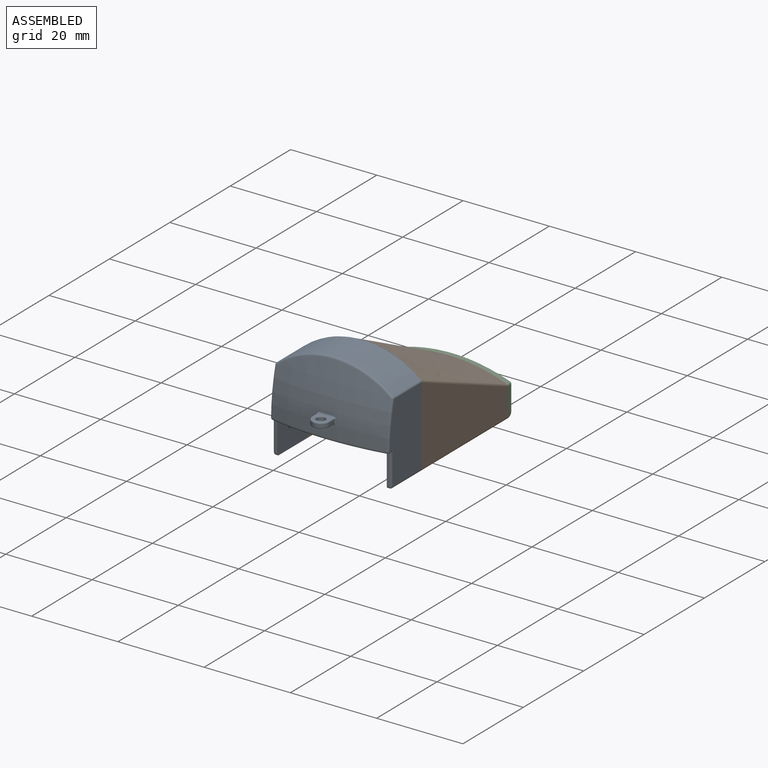
[diagram: assembled view]
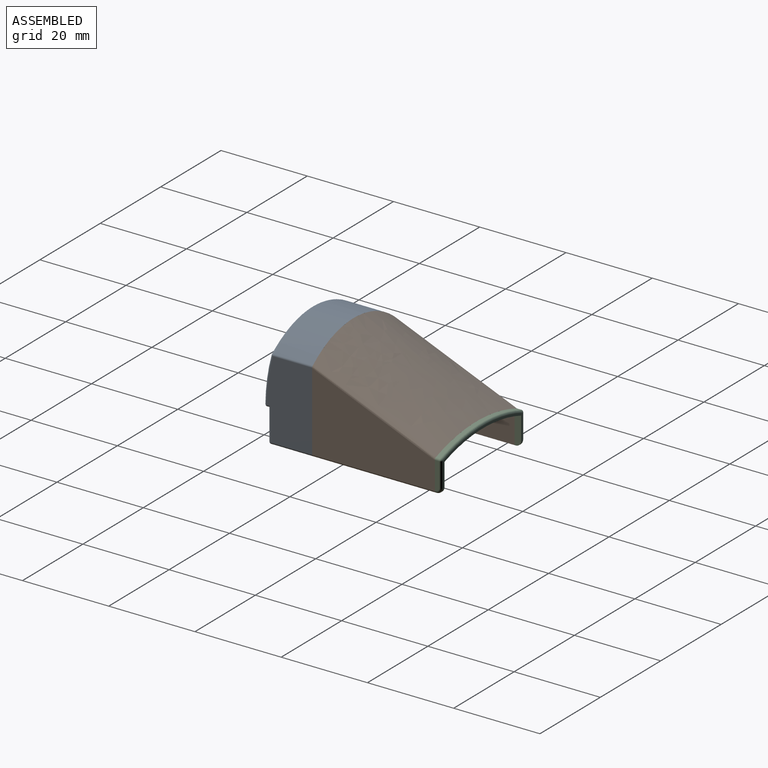
[diagram: assembled view, second angle]
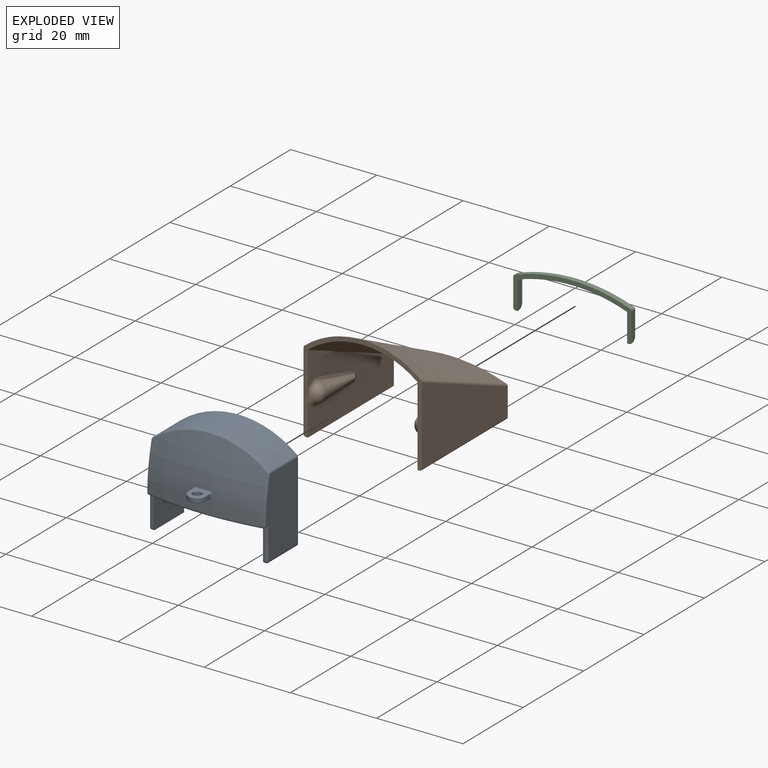
[diagram: exploded view]
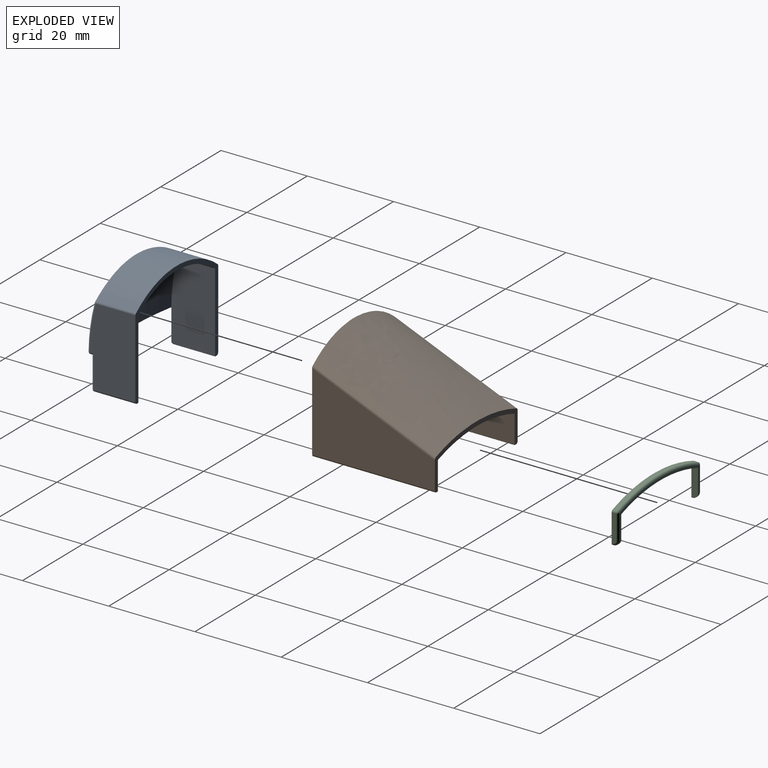
[diagram: exploded view, second angle]
ASSEMBLY  parts=3 mates=2
PART A: 60 faces, bbox 42.4x16x23.9 mm
  f0: revolved ~26.6x11.34mm, area 295.9mm2, adj f16,f17,f19,f22,f24,f29,f45,f48
  f1: plane 18.42x10.16mm, normal (-1,0,0), area 182.1mm2, adj f3,f8,f9,f13,f15,f32
  f2: plane 18.42x10.16mm, normal (1,0,0), area 182.1mm2, adj f7,f8,f9,f12,f15,f36
  f3: plane 9.65x0.51mm, normal (0,0,-1), area 4.9mm2, adj f1,f9,f10,f32
  f4: plane 18.15x10.58mm, normal (1,0,0), area 179.7mm2, adj f9,f10,f17,f20,f27,f33
  f5: cylinder r=21.38mm len=27.06mm, axis (0,1,0), area 267.4mm2, adj f9,f20,f22,f23,f24,f26
  f6: plane 18.15x10.58mm, normal (-1,0,0), area 179.7mm2, adj f9,f11,f16,f26,f31,f35
  f7: plane 9.65x0.51mm, normal (0,0,-1), area 4.9mm2, adj f2,f9,f11,f36
  f8: cylinder r=20.37mm len=25.4mm, axis (0,1,0), area 240mm2, adj f1,f2,f9,f15,f18
  f9: plane 27.43x23.88mm, normal (0,1,0), area 66.8mm2, adj f1,f2,f3,f4,f5,f6,f7,f8
  f10: cylinder r=0.51mm len=9.65mm, axis (0,1,0), area 7.7mm2, adj f3,f4,f9,f34
  f11: cylinder r=0.51mm len=9.65mm, axis (0,1,0), area 7.7mm2, adj f6,f7,f9,f37
  f12: plane 7.11x0.51mm, normal (0,-1,0), area 3.6mm2, adj f2,f14,f35,f36
  f13: plane 7.11x0.51mm, normal (0,-1,0), area 3.6mm2, adj f1,f14,f32,f33
  f14: plane 26.44x1.65mm, normal (0,0,-1), area 13.4mm2, adj f12,f13,f15,f27,f29,f31
  f15: revolved ~25.4x11.58mm, area 296.4mm2, adj f1,f2,f8,f14,f18
  f16: torus R=42.91mm, axis (-1,0,0), area 7.6mm2, adj f0,f6,f25,f30
  f17: torus R=42.91mm, axis (-1,0,0), area 7.6mm2, adj f0,f4,f21,f28
  f18: cylinder r=71.13mm len=24.05mm, axis (0,0.27,0.96), area 62.4mm2, adj f8,f15
  f19: cylinder r=72.14mm len=25.65mm, axis (0,0.27,0.96), area 73.5mm2, adj f0,f23
  f20: cylinder r=0.51mm len=9.14mm, axis (0,1,0), area 4.1mm2, adj f4,f5,f9,f21
  f21: sphere r=0.51mm, area 0.2mm2, adj f17,f20,f22
  f22: bspline ~2.63x2.18mm, area 0.4mm2, adj f0,f5,f21,f23
  f23: bspline ~29.67x6.22mm, area 18.2mm2, adj f5,f19,f22,f24
  f24: bspline ~2.63x2.18mm, area 0.4mm2, adj f0,f5,f23,f25
  f25: sphere r=0.51mm, area 0.2mm2, adj f16,f24,f26
  f26: cylinder r=0.51mm len=9.14mm, axis (0,1,0), area 4.1mm2, adj f5,f6,f9,f25
  f27: cylinder r=0.51mm len=0.93mm, axis (0,1,0), area 0.5mm2, adj f4,f14,f28,f33
  f28: sphere r=0.51mm, area 0.4mm2, adj f17,f27,f29
  f29: bspline ~42.4x3.65mm, area 21.5mm2, adj f0,f14,f28,f30
  f30: sphere r=0.51mm, area 0.4mm2, adj f16,f29,f31
  f31: cylinder r=0.51mm len=0.93mm, axis (0,1,0), area 0.5mm2, adj f6,f14,f30,f35
  f32: cylinder r=0.51mm len=0.51mm, axis (1,0,0), area 0.4mm2, adj f1,f3,f13,f34
  f33: cylinder r=0.51mm len=7.62mm, axis (0,0,-1), area 5.8mm2, adj f4,f13,f27,f34
  f34: sphere r=0.51mm, area 0.4mm2, adj f10,f32,f33
  f35: cylinder r=0.51mm len=7.62mm, axis (0,0,-1), area 5.8mm2, adj f6,f12,f31,f37
  f36: cylinder r=0.51mm len=0.51mm, axis (-1,0,0), area 0.4mm2, adj f2,f7,f12,f37
  f37: sphere r=0.51mm, area 0.4mm2, adj f11,f35,f36
  f38: plane 1.56x0.76mm, normal (1,0,0), area 1.2mm2, adj f40,f44,f45,f46
  f39: plane 1.56x0.76mm, normal (-1,0,0), area 1.2mm2, adj f40,f51,f54,f57
  f40: cylinder r=2.03mm len=4.06mm, axis (0,0,-1), area 4.9mm2, adj f38,f39,f47,f50
  f41: cylinder r=1.02mm len=2.03mm, axis (0,0,-1), area 4.9mm2, adj f58,f59
  f42: plane 3.56x3.39mm, normal (0,0,1), area 5.6mm2, adj f46,f50,f53,f54,f59
  f43: plane 3.56x3.21mm, normal (0,0,-1), area 4.9mm2, adj f44,f47,f51,f52,f58
  f44: cylinder r=0.25mm len=1.49mm, axis (0,1,0), area 0.6mm2, adj f38,f43,f47,f48
  f45: torus R=44.87mm, axis (1,0,0), area 0.3mm2, adj f0,f38,f48,f49
  f46: cylinder r=0.25mm len=1.61mm, axis (0,-1,0), area 0.6mm2, adj f38,f42,f49,f50
  f47: torus R=1.78mm, axis (0,0,1), area 2.4mm2, adj f40,f43,f44,f51
  f48: bspline ~0.62x0.6mm, area 0.2mm2, adj f0,f44,f45,f52
  f49: bspline ~0.62x0.59mm, area 0.2mm2, adj f0,f45,f46,f53
  f50: torus R=1.78mm, axis (0,0,1), area 2.4mm2, adj f40,f42,f46,f54
  f51: cylinder r=0.25mm len=1.49mm, axis (0,-1,0), area 0.6mm2, adj f39,f43,f47,f55
  f52: bspline ~15.23x0.65mm, area 1.5mm2, adj f0,f43,f48,f55
  f53: bspline ~15.23x0.63mm, area 1.3mm2, adj f0,f42,f49,f56
  f54: cylinder r=0.25mm len=1.61mm, axis (0,1,0), area 0.6mm2, adj f39,f42,f50,f56
  f55: bspline ~0.62x0.59mm, area 0.2mm2, adj f0,f51,f52,f57
  f56: bspline ~0.62x0.59mm, area 0.2mm2, adj f0,f53,f54,f57
  f57: torus R=44.87mm, axis (1,0,0), area 0.3mm2, adj f0,f39,f55,f56
  f58: torus R=1.27mm, axis (0,0,1), area 2.8mm2, adj f41,f43
  f59: torus R=1.27mm, axis (0,0,1), area 2.8mm2, adj f41,f42
PART B: 32 faces, bbox 27.5x33.2x24 mm
  f0: plane 28.45x18.42mm, normal (-1,0,0), area 283mm2, adj f1,f2,f7,f8,f25,f26,f27,f28
  f1: plane 27.52x23.96mm, normal (0,-1,0), area 66.8mm2, adj f0,f3,f4,f5,f6,f7,f8,f9
  f2: plane 27.47x9.84mm, normal (0,1,0), area 41.4mm2, adj f0,f3,f4,f5,f6,f7,f8,f9
  f3: plane 28.45x0.51mm, normal (0,0,-1), area 14.5mm2, adj f1,f2,f9,f11
  f4: plane 28.45x18.12mm, normal (-1,0,0), area 349mm2, adj f1,f2,f11,f31
  f5: bspline ~28.45x27.03mm, area 879.1mm2, adj f1,f2,f30,f31
  f6: plane 28.45x18.12mm, normal (1,0,0), area 349mm2, adj f1,f2,f10,f30
  f7: plane 28.45x0.51mm, normal (0,0,-1), area 14.5mm2, adj f0,f1,f2,f10
  f8: bspline ~28.45x25.4mm, area 829.5mm2, adj f0,f1,f2,f9
  f9: plane 28.45x18.42mm, normal (1,0,0), area 283mm2, adj f1,f2,f3,f8,f16,f17,f18,f19
  f10: cylinder r=0.51mm len=28.45mm, axis (0,1,0), area 22.7mm2, adj f1,f2,f6,f7
  f11: cylinder r=0.51mm len=28.45mm, axis (0,1,0), area 22.7mm2, adj f1,f2,f3,f4
  f12: sphere r=0.56mm, area 4mm2, adj f13,f20
  f13: cone r=0.56mm half-angle=7.2deg, axis (0,-0.99,0.12), area 33.1mm2, adj f12,f14,f18,f19
  f14: sphere r=2.1mm, area 9mm2, adj f13,f15,f16,f17
  f15: bspline ~3.86x1.09mm, area 3.1mm2, adj f1,f14,f16,f17
  f16: torus R=3.12mm, axis (-1,0,0), area 4.6mm2, adj f9,f14,f15,f18
  f17: torus R=3.12mm, axis (-1,0,0), area 3.7mm2, adj f9,f14,f15,f19
  f18: bspline ~16.37x5.29mm, area 16.1mm2, adj f9,f13,f16,f20
  f19: bspline ~16.67x1.23mm, area 16.1mm2, adj f9,f13,f17,f20
  f20: torus R=1.32mm, axis (-1,0,0), area 2.4mm2, adj f9,f12,f18,f19
  f21: sphere r=0.56mm, area 4mm2, adj f22,f29
  f22: cone r=0.56mm half-angle=7.2deg, axis (0,-0.99,0.12), area 33.1mm2, adj f21,f23,f27,f28
  f23: sphere r=2.1mm, area 9mm2, adj f22,f24,f25,f26
  f24: bspline ~3.86x1.09mm, area 3.1mm2, adj f1,f23,f25,f26
  f25: torus R=3.12mm, axis (1,0,0), area 4.6mm2, adj f0,f23,f24,f27
  f26: torus R=3.12mm, axis (1,0,0), area 3.7mm2, adj f0,f23,f24,f28
  f27: bspline ~16.37x5.29mm, area 16.1mm2, adj f0,f22,f25,f29
  f28: bspline ~16.67x1.23mm, area 16.1mm2, adj f0,f22,f26,f29
  f29: torus R=1.32mm, axis (1,0,0), area 2.4mm2, adj f0,f21,f27,f28
  f30: bspline ~33.08x13.9mm, area 16.9mm2, adj f1,f2,f5,f6
  f31: bspline ~33.08x13.9mm, area 16.9mm2, adj f1,f2,f4,f5
PART C: 23 faces, bbox 29x1.6x13.1 mm
  f0: cylinder r=38.01mm len=25.4mm, axis (0,-1,0), area 39.5mm2, adj f1,f7,f8,f9
  f1: plane 6.6x1.52mm, normal (-1,0,0), area 9.7mm2, adj f0,f2,f8,f9,f11
  f2: plane 0.51x0.25mm, normal (0,0,-1), area 0.1mm2, adj f1,f9,f11,f12
  f3: plane 6.45x1.02mm, normal (1,0,0), area 6.4mm2, adj f9,f12,f13,f14,f19
  f4: cylinder r=39.03mm len=26.76mm, axis (0,-1,0), area 27.8mm2, adj f9,f15,f19,f21
  f5: plane 6.45x1.02mm, normal (-1,0,0), area 6.4mm2, adj f9,f16,f17,f18,f21
  f6: plane 0.51x0.25mm, normal (0,0,-1), area 0.1mm2, adj f7,f9,f10,f18
  f7: plane 6.6x1.52mm, normal (1,0,0), area 9.7mm2, adj f0,f6,f8,f9,f10
  f8: plane 26.42x8.03mm, normal (0,1,0), area 19mm2, adj f0,f1,f7,f10,f11,f14,f15,f16
  f9: plane 27.43x9.8mm, normal (0,-1,0), area 41.4mm2, adj f0,f1,f2,f3,f4,f5,f6,f7
  f10: cylinder r=1.27mm len=1.27mm, axis (-1,0,0), area 1mm2, adj f6,f7,f8,f17
  f11: cylinder r=1.27mm len=1.27mm, axis (-1,0,0), area 1mm2, adj f1,f2,f8,f13
  f12: cylinder r=0.51mm len=0.51mm, axis (0,1,0), area 0.2mm2, adj f2,f3,f9,f13
  f13: torus R=0.76mm, axis (-1,0,0), area 1.4mm2, adj f3,f11,f12,f14
  f14: cylinder r=0.51mm len=5.69mm, axis (0,0,-1), area 4.5mm2, adj f3,f8,f13,f20
  f15: torus R=38.52mm, axis (0,-1,0), area 21.7mm2, adj f4,f8,f20,f22
  f16: cylinder r=0.51mm len=5.69mm, axis (0,0,1), area 4.5mm2, adj f5,f8,f17,f22
  f17: torus R=0.76mm, axis (-1,0,0), area 1.4mm2, adj f5,f10,f16,f18
  f18: cylinder r=0.51mm len=0.51mm, axis (0,1,0), area 0.2mm2, adj f5,f6,f9,f17
  f19: cylinder r=0.51mm len=1.02mm, axis (0,-1,0), area 0.6mm2, adj f3,f4,f9,f20
  f20: sphere r=0.51mm, area 0.3mm2, adj f14,f15,f19
  f21: cylinder r=0.51mm len=1.02mm, axis (0,-1,0), area 0.6mm2, adj f4,f5,f9,f22
  f22: sphere r=0.51mm, area 0.3mm2, adj f15,f16,f21
PLACE A t=(-9.26,14.3,-8.5)mm
PLACE B t=(-9.26,14.3,-8.5)mm
PLACE C t=(-9.26,14.3,-8.5)mm
MATE fastened C.f9 <-> B.f2  axis (0,-1,0) through (3.44,42.74,-8.5)mm
MATE fastened B.f1 <-> A.f9  axis (0,-1,0) through (3.44,14.3,-8.5)mm
